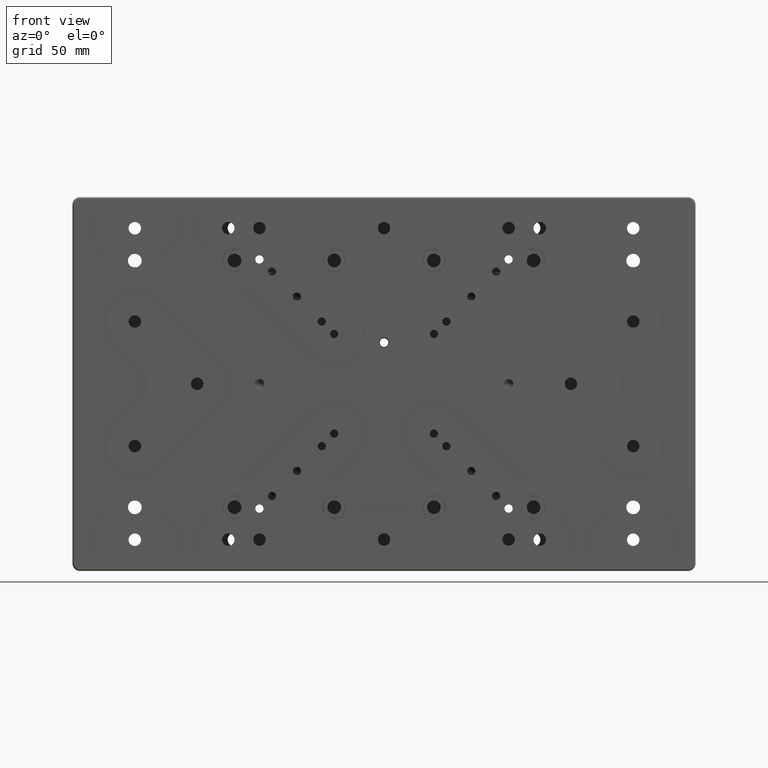
[diagram: clean part render]
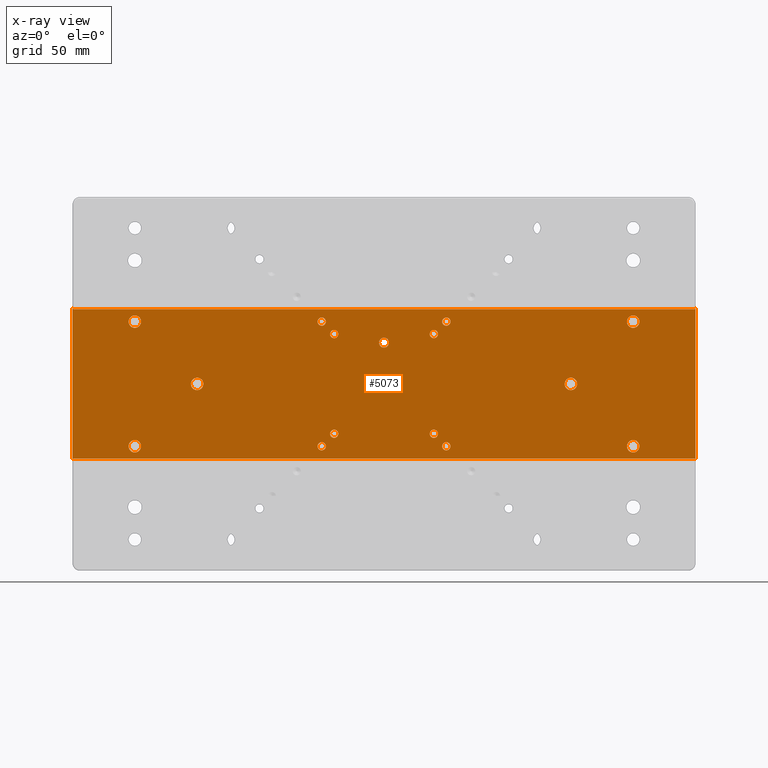
[diagram: x-ray — body ghosted, one internal face saturated and labeled with its STEP entity id]
A machine part, front view, then the same camera in x-ray: the body is ghosted and one INTERNAL B-rep face — a face not visible from any outside direction — is saturated and labeled: STEP entity #5073.
In plain terms, the highlighted planar face has unit normal (0, 1, 0).
Its self-contained STEP definition (entity closure, byte-faithful):
#112 = DIRECTION ( 'NONE',  ( 0.000000000000000000, 0.000000000000000000, -1.000000000000000000 ) ) ;
#429 = FACE_BOUND ( 'NONE', #14260, .T. ) ;
#709 = AXIS2_PLACEMENT_3D ( 'NONE', #4245, #17811, #9771 ) ;
#718 = AXIS2_PLACEMENT_3D ( 'NONE', #21863, #32783, #26878 ) ;
#791 = DIRECTION ( 'NONE',  ( 0.000000000000000000, 1.000000000000000000, 0.000000000000000000 ) ) ;
#1041 = ORIENTED_EDGE ( 'NONE', *, *, #14059, .T. ) ;
#1356 = DIRECTION ( 'NONE',  ( 0.000000000000000000, -1.000000000000000000, 0.000000000000000000 ) ) ;
#1706 = DIRECTION ( 'NONE',  ( 0.000000000000000000, 0.000000000000000000, -1.000000000000000000 ) ) ;
#1832 = AXIS2_PLACEMENT_3D ( 'NONE', #5634, #791, #27599 ) ;
#1864 = AXIS2_PLACEMENT_3D ( 'NONE', #17171, #22869, #28596 ) ;
#1955 = DIRECTION ( 'NONE',  ( 0.000000000000000000, -1.000000000000000000, 0.000000000000000000 ) ) ;
#2048 = LINE ( 'NONE', #10611, #18118 ) ;
#2122 = ORIENTED_EDGE ( 'NONE', *, *, #34911, .T. ) ;
#2218 = CARTESIAN_POINT ( 'NONE',  ( -125.0000000000000000, -11.50000000000000000, -30.00000000000000000 ) ) ;
#2238 = CARTESIAN_POINT ( 'NONE',  ( 20.00000000000000000, -11.50000000000000000, 18.35000000000000142 ) ) ;
#2378 = DIRECTION ( 'NONE',  ( 0.000000000000000000, 0.000000000000000000, 1.000000000000000000 ) ) ;
#2637 = VERTEX_POINT ( 'NONE', #10846 ) ;
#2903 = CARTESIAN_POINT ( 'NONE',  ( -100.0000000000000000, -11.50000000000000000, -25.00000000000000000 ) ) ;
#2917 = VERTEX_POINT ( 'NONE', #34887 ) ;
#2954 = FACE_BOUND ( 'NONE', #11788, .T. ) ;
#2965 = EDGE_CURVE ( 'NONE', #20138, #20135, #11542, .T. ) ;
#2980 = AXIS2_PLACEMENT_3D ( 'NONE', #6792, #14826, #17681 ) ;
#3302 = DIRECTION ( 'NONE',  ( 0.000000000000000000, -1.000000000000000000, 0.000000000000000000 ) ) ;
#3305 = FACE_BOUND ( 'NONE', #4184, .T. ) ;
#3406 = LINE ( 'NONE', #14830, #15453 ) ;
#3430 = DIRECTION ( 'NONE',  ( 0.000000000000000000, 0.000000000000000000, -1.000000000000000000 ) ) ;
#3443 = DIRECTION ( 'NONE',  ( 0.000000000000000000, 0.000000000000000000, -1.000000000000000000 ) ) ;
#3761 = EDGE_CURVE ( 'NONE', #29924, #29924, #17421, .T. ) ;
#3762 = DIRECTION ( 'NONE',  ( -1.000000000000000000, -0.000000000000000000, 0.000000000000000000 ) ) ;
#3803 = EDGE_LOOP ( 'NONE', ( #17511 ) ) ;
#3952 = VECTOR ( 'NONE', #18466, 1000.000000000000000 ) ;
#4038 = CARTESIAN_POINT ( 'NONE',  ( 20.00000000000000000, -11.50000000000000000, 20.00000000000000000 ) ) ;
#4184 = EDGE_LOOP ( 'NONE', ( #21442 ) ) ;
#4190 = DIRECTION ( 'NONE',  ( 0.000000000000000000, 0.000000000000000000, 1.000000000000000000 ) ) ;
#4245 = CARTESIAN_POINT ( 'NONE',  ( -25.00000000000000000, -11.50000000000000000, 25.00000000000000000 ) ) ;
#4422 = VERTEX_POINT ( 'NONE', #26237 ) ;
#4569 = CARTESIAN_POINT ( 'NONE',  ( -124.5000000000000000, -11.49999999999999822, -30.00000000000000000 ) ) ;
#5073 = ADVANCED_FACE ( 'NONE', ( #19721, #429, #22042, #16706, #19188, #16879, #2954, #9015, #6345, #30459, #5995, #27762, #8840, #3305, #14204, #33312 ), #5814, .T. ) ;
#5466 = ORIENTED_EDGE ( 'NONE', *, *, #10738, .T. ) ;
#5498 = CARTESIAN_POINT ( 'NONE',  ( -25.00000000000000000, -11.50000000000000000, -26.64999999999999858 ) ) ;
#5634 = CARTESIAN_POINT ( 'NONE',  ( -125.0000000000000000, -11.50000000000000000, -30.00000000000000000 ) ) ;
#5814 = PLANE ( 'NONE',  #1832 ) ;
#5995 = FACE_BOUND ( 'NONE', #14699, .T. ) ;
#6239 = CIRCLE ( 'NONE', #25066, 0.5000000000000004441 ) ;
#6345 = FACE_BOUND ( 'NONE', #34415, .T. ) ;
#6374 = DIRECTION ( 'NONE',  ( 0.000000000000000000, 0.000000000000000000, -1.000000000000000000 ) ) ;
#6610 = EDGE_CURVE ( 'NONE', #11334, #11334, #8382, .T. ) ;
#6636 = AXIS2_PLACEMENT_3D ( 'NONE', #17189, #14515, #22890 ) ;
#6792 = CARTESIAN_POINT ( 'NONE',  ( 20.00000000000000000, -11.50000000000000000, -20.00000000000000000 ) ) ;
#6872 = EDGE_LOOP ( 'NONE', ( #22364 ) ) ;
#7364 = EDGE_CURVE ( 'NONE', #8665, #8665, #10433, .T. ) ;
#7590 = LINE ( 'NONE', #2218, #3952 ) ;
#8382 = CIRCLE ( 'NONE', #21550, 2.499999999999998668 ) ;
#8447 = EDGE_CURVE ( 'NONE', #20138, #4422, #25088, .T. ) ;
#8477 = AXIS2_PLACEMENT_3D ( 'NONE', #13823, #29709, #2378 ) ;
#8504 = AXIS2_PLACEMENT_3D ( 'NONE', #2903, #19138, #10578 ) ;
#8665 = VERTEX_POINT ( 'NONE', #19544 ) ;
#8840 = FACE_BOUND ( 'NONE', #33074, .T. ) ;
#9015 = FACE_BOUND ( 'NONE', #34554, .T. ) ;
#9200 = EDGE_CURVE ( 'NONE', #31810, #31810, #14907, .T. ) ;
#9718 = DIRECTION ( 'NONE',  ( 0.000000000000000000, 1.000000000000000000, 0.000000000000000000 ) ) ;
#9771 = DIRECTION ( 'NONE',  ( 0.000000000000000000, 0.000000000000000000, -1.000000000000000000 ) ) ;
#10251 = DIRECTION ( 'NONE',  ( 0.000000000000000000, 0.000000000000000000, -1.000000000000000000 ) ) ;
#10433 = CIRCLE ( 'NONE', #718, 2.500000000000000000 ) ;
#10578 = DIRECTION ( 'NONE',  ( 0.000000000000000000, 0.000000000000000000, -1.000000000000000000 ) ) ;
#10611 = CARTESIAN_POINT ( 'NONE',  ( 125.0000000000000000, -11.50000000000000000, -30.00000000000000000 ) ) ;
#10626 = CARTESIAN_POINT ( 'NONE',  ( 124.5000000000000000, -11.50000000000000178, -30.00000000000000000 ) ) ;
#10738 = EDGE_CURVE ( 'NONE', #29838, #29838, #34379, .T. ) ;
#10837 = DIRECTION ( 'NONE',  ( -0.000000000000000000, 1.000000000000000000, -0.000000000000000000 ) ) ;
#10846 = CARTESIAN_POINT ( 'NONE',  ( 0.000000000000000000, -11.50000000000000000, 18.57000000000000384 ) ) ;
#10851 = ORIENTED_EDGE ( 'NONE', *, *, #2965, .T. ) ;
#10890 = CARTESIAN_POINT ( 'NONE',  ( -124.5000000000000000, -11.50000000000000355, 30.50000000000000000 ) ) ;
#11127 = CARTESIAN_POINT ( 'NONE',  ( -124.5000000000000000, -11.50000000000000178, 30.00000000000000000 ) ) ;
#11334 = VERTEX_POINT ( 'NONE', #14024 ) ;
#11395 = EDGE_CURVE ( 'NONE', #18301, #21525, #18473, .T. ) ;
#11396 = ORIENTED_EDGE ( 'NONE', *, *, #29597, .T. ) ;
#11542 = LINE ( 'NONE', #19391, #27712 ) ;
#11611 = EDGE_CURVE ( 'NONE', #16264, #16264, #28746, .T. ) ;
#11788 = EDGE_LOOP ( 'NONE', ( #22293 ) ) ;
#12697 = ORIENTED_EDGE ( 'NONE', *, *, #8447, .F. ) ;
#13224 = CARTESIAN_POINT ( 'NONE',  ( -20.00000000000000000, -11.50000000000000000, 18.35000000000000142 ) ) ;
#13335 = AXIS2_PLACEMENT_3D ( 'NONE', #20277, #17436, #6374 ) ;
#13406 = CARTESIAN_POINT ( 'NONE',  ( -75.00000000000000000, -11.50000000000000000, -2.500000000000000000 ) ) ;
#13716 = CARTESIAN_POINT ( 'NONE',  ( -100.0000000000000000, -11.50000000000000000, -27.50000000000000000 ) ) ;
#13783 = ORIENTED_EDGE ( 'NONE', *, *, #18979, .T. ) ;
#13823 = CARTESIAN_POINT ( 'NONE',  ( 0.000000000000000000, -11.50000000000000000, 16.57000000000000028 ) ) ;
#13859 = CARTESIAN_POINT ( 'NONE',  ( -100.0000000000000000, -11.50000000000000000, 25.00000000000000000 ) ) ;
#13916 = ORIENTED_EDGE ( 'NONE', *, *, #11395, .F. ) ;
#14024 = CARTESIAN_POINT ( 'NONE',  ( 100.0000000000000000, -11.50000000000000000, -27.50000000000000000 ) ) ;
#14059 = EDGE_CURVE ( 'NONE', #33926, #33926, #34349, .T. ) ;
#14161 = CARTESIAN_POINT ( 'NONE',  ( -25.00000000000000000, -11.50000000000000000, -25.00000000000000000 ) ) ;
#14204 = FACE_BOUND ( 'NONE', #3803, .T. ) ;
#14260 = EDGE_LOOP ( 'NONE', ( #5466 ) ) ;
#14290 = VERTEX_POINT ( 'NONE', #15004 ) ;
#14403 = EDGE_CURVE ( 'NONE', #14290, #14290, #19546, .T. ) ;
#14515 = DIRECTION ( 'NONE',  ( 0.000000000000000000, 1.000000000000000000, 0.000000000000000000 ) ) ;
#14699 = EDGE_LOOP ( 'NONE', ( #2122 ) ) ;
#14790 = ORIENTED_EDGE ( 'NONE', *, *, #6610, .T. ) ;
#14826 = DIRECTION ( 'NONE',  ( 0.000000000000000000, -1.000000000000000000, 0.000000000000000000 ) ) ;
#14830 = CARTESIAN_POINT ( 'NONE',  ( -125.0000000000000000, -11.50000000000000000, -30.00000000000000000 ) ) ;
#14907 = CIRCLE ( 'NONE', #32569, 1.649999999999998579 ) ;
#15004 = CARTESIAN_POINT ( 'NONE',  ( -25.00000000000000000, -11.50000000000000000, 23.35000000000000142 ) ) ;
#15453 = VECTOR ( 'NONE', #3762, 1000.000000000000000 ) ;
#15787 = CARTESIAN_POINT ( 'NONE',  ( 100.0000000000000000, -11.50000000000000000, -25.00000000000000000 ) ) ;
#16264 = VERTEX_POINT ( 'NONE', #16439 ) ;
#16349 = VERTEX_POINT ( 'NONE', #32428 ) ;
#16387 = ORIENTED_EDGE ( 'NONE', *, *, #7364, .T. ) ;
#16435 = DIRECTION ( 'NONE',  ( -0.000000000000000000, 1.000000000000000000, -0.000000000000000000 ) ) ;
#16439 = CARTESIAN_POINT ( 'NONE',  ( 25.00000000000000000, -11.50000000000000000, 23.35000000000000142 ) ) ;
#16482 = DIRECTION ( 'NONE',  ( 0.000000000000000000, 0.000000000000000000, -1.000000000000000000 ) ) ;
#16662 = DIRECTION ( 'NONE',  ( 0.000000000000000000, -1.000000000000000000, 0.000000000000000000 ) ) ;
#16706 = FACE_BOUND ( 'NONE', #30639, .T. ) ;
#16779 = AXIS2_PLACEMENT_3D ( 'NONE', #22076, #10837, #112 ) ;
#16879 = FACE_BOUND ( 'NONE', #24956, .T. ) ;
#17171 = CARTESIAN_POINT ( 'NONE',  ( -75.00000000000000000, -11.50000000000000000, 0.000000000000000000 ) ) ;
#17189 = CARTESIAN_POINT ( 'NONE',  ( -124.5000000000000000, -11.49999999999999645, -30.50000000000000000 ) ) ;
#17206 = EDGE_CURVE ( 'NONE', #28914, #28914, #31801, .T. ) ;
#17216 = VERTEX_POINT ( 'NONE', #32958 ) ;
#17421 = CIRCLE ( 'NONE', #20832, 1.649999999999998579 ) ;
#17436 = DIRECTION ( 'NONE',  ( 0.000000000000000000, -1.000000000000000000, 0.000000000000000000 ) ) ;
#17511 = ORIENTED_EDGE ( 'NONE', *, *, #20355, .T. ) ;
#17662 = DIRECTION ( 'NONE',  ( 0.000000000000000000, 0.000000000000000000, -1.000000000000000000 ) ) ;
#17681 = DIRECTION ( 'NONE',  ( 0.000000000000000000, 0.000000000000000000, -1.000000000000000000 ) ) ;
#17811 = DIRECTION ( 'NONE',  ( 0.000000000000000000, -1.000000000000000000, 0.000000000000000000 ) ) ;
#18118 = VECTOR ( 'NONE', #32234, 1000.000000000000000 ) ;
#18301 = VERTEX_POINT ( 'NONE', #10626 ) ;
#18322 = CARTESIAN_POINT ( 'NONE',  ( 25.00000000000000000, -11.50000000000000000, -26.64999999999999858 ) ) ;
#18466 = DIRECTION ( 'NONE',  ( 0.000000000000000000, -0.000000000000000000, 1.000000000000000000 ) ) ;
#18473 = CIRCLE ( 'NONE', #16779, 0.5000000000000004441 ) ;
#18979 = EDGE_CURVE ( 'NONE', #19407, #19407, #29581, .T. ) ;
#19138 = DIRECTION ( 'NONE',  ( 0.000000000000000000, -1.000000000000000000, 0.000000000000000000 ) ) ;
#19188 = FACE_BOUND ( 'NONE', #6872, .T. ) ;
#19391 = CARTESIAN_POINT ( 'NONE',  ( -125.0000000000000000, -11.50000000000000000, 30.00000000000000000 ) ) ;
#19406 = ORIENTED_EDGE ( 'NONE', *, *, #32763, .F. ) ;
#19407 = VERTEX_POINT ( 'NONE', #13716 ) ;
#19544 = CARTESIAN_POINT ( 'NONE',  ( 75.00000000000000000, -11.50000000000000000, -2.500000000000000000 ) ) ;
#19546 = CIRCLE ( 'NONE', #709, 1.649999999999998579 ) ;
#19721 = FACE_BOUND ( 'NONE', #25231, .T. ) ;
#19785 = ORIENTED_EDGE ( 'NONE', *, *, #24909, .F. ) ;
#19973 = CARTESIAN_POINT ( 'NONE',  ( -20.00000000000000000, -11.50000000000000000, -20.00000000000000000 ) ) ;
#20135 = VERTEX_POINT ( 'NONE', #22182 ) ;
#20138 = VERTEX_POINT ( 'NONE', #11127 ) ;
#20222 = EDGE_CURVE ( 'NONE', #2637, #2637, #27868, .T. ) ;
#20277 = CARTESIAN_POINT ( 'NONE',  ( 25.00000000000000000, -11.50000000000000000, 25.00000000000000000 ) ) ;
#20355 = EDGE_CURVE ( 'NONE', #29969, #29969, #21589, .T. ) ;
#20406 = EDGE_LOOP ( 'NONE', ( #22051 ) ) ;
#20832 = AXIS2_PLACEMENT_3D ( 'NONE', #4038, #1356, #1706 ) ;
#21004 = CIRCLE ( 'NONE', #30695, 2.499999999999998668 ) ;
#21442 = ORIENTED_EDGE ( 'NONE', *, *, #11611, .T. ) ;
#21510 = AXIS2_PLACEMENT_3D ( 'NONE', #13859, #3302, #24730 ) ;
#21525 = VERTEX_POINT ( 'NONE', #27383 ) ;
#21550 = AXIS2_PLACEMENT_3D ( 'NONE', #15787, #21662, #10251 ) ;
#21575 = DIRECTION ( 'NONE',  ( 0.000000000000000000, 0.000000000000000000, -1.000000000000000000 ) ) ;
#21589 = CIRCLE ( 'NONE', #34709, 1.649999999999998579 ) ;
#21645 = CARTESIAN_POINT ( 'NONE',  ( 25.00000000000000000, -11.50000000000000000, -25.00000000000000000 ) ) ;
#21662 = DIRECTION ( 'NONE',  ( 0.000000000000000000, -1.000000000000000000, 0.000000000000000000 ) ) ;
#21863 = CARTESIAN_POINT ( 'NONE',  ( 75.00000000000000000, -11.50000000000000000, 0.000000000000000000 ) ) ;
#21945 = EDGE_CURVE ( 'NONE', #18301, #28434, #3406, .T. ) ;
#22042 = FACE_BOUND ( 'NONE', #20406, .T. ) ;
#22051 = ORIENTED_EDGE ( 'NONE', *, *, #26415, .T. ) ;
#22076 = CARTESIAN_POINT ( 'NONE',  ( 124.5000000000000000, -11.50000000000000355, -30.50000000000000000 ) ) ;
#22182 = CARTESIAN_POINT ( 'NONE',  ( 124.5000000000000000, -11.49999999999999822, 30.00000000000000000 ) ) ;
#22249 = CARTESIAN_POINT ( 'NONE',  ( -125.0000000000000000, -11.49999999999999822, -30.50000000000000000 ) ) ;
#22293 = ORIENTED_EDGE ( 'NONE', *, *, #23588, .T. ) ;
#22348 = CIRCLE ( 'NONE', #26838, 1.649999999999998579 ) ;
#22364 = ORIENTED_EDGE ( 'NONE', *, *, #17206, .T. ) ;
#22385 = CIRCLE ( 'NONE', #29235, 1.649999999999998579 ) ;
#22869 = DIRECTION ( 'NONE',  ( 0.000000000000000000, -1.000000000000000000, 0.000000000000000000 ) ) ;
#22890 = DIRECTION ( 'NONE',  ( 0.000000000000000000, 0.000000000000000000, 1.000000000000000000 ) ) ;
#22894 = DIRECTION ( 'NONE',  ( 0.000000000000000000, -1.000000000000000000, 0.000000000000000000 ) ) ;
#23081 = EDGE_LOOP ( 'NONE', ( #19785, #25936, #12697, #10851, #19406, #11396, #13916, #31446 ) ) ;
#23588 = EDGE_CURVE ( 'NONE', #29394, #29394, #22385, .T. ) ;
#24599 = EDGE_LOOP ( 'NONE', ( #24792 ) ) ;
#24730 = DIRECTION ( 'NONE',  ( 0.000000000000000000, 0.000000000000000000, -1.000000000000000000 ) ) ;
#24792 = ORIENTED_EDGE ( 'NONE', *, *, #3761, .T. ) ;
#24909 = EDGE_CURVE ( 'NONE', #31002, #28434, #34587, .T. ) ;
#24956 = EDGE_LOOP ( 'NONE', ( #13783 ) ) ;
#25066 = AXIS2_PLACEMENT_3D ( 'NONE', #31687, #9718, #4190 ) ;
#25088 = CIRCLE ( 'NONE', #34216, 0.5000000000000004441 ) ;
#25231 = EDGE_LOOP ( 'NONE', ( #16387 ) ) ;
#25936 = ORIENTED_EDGE ( 'NONE', *, *, #27310, .T. ) ;
#26237 = CARTESIAN_POINT ( 'NONE',  ( -125.0000000000000000, -11.50000000000000178, 30.50000000000000000 ) ) ;
#26415 = EDGE_CURVE ( 'NONE', #16349, #16349, #21004, .T. ) ;
#26816 = EDGE_LOOP ( 'NONE', ( #1041 ) ) ;
#26838 = AXIS2_PLACEMENT_3D ( 'NONE', #19973, #33917, #17662 ) ;
#26878 = DIRECTION ( 'NONE',  ( 0.000000000000000000, 0.000000000000000000, -1.000000000000000000 ) ) ;
#26899 = ORIENTED_EDGE ( 'NONE', *, *, #20222, .T. ) ;
#27310 = EDGE_CURVE ( 'NONE', #31002, #4422, #7590, .T. ) ;
#27383 = CARTESIAN_POINT ( 'NONE',  ( 125.0000000000000000, -11.50000000000000178, -30.50000000000000000 ) ) ;
#27599 = DIRECTION ( 'NONE',  ( 0.000000000000000000, -0.000000000000000000, 1.000000000000000000 ) ) ;
#27618 = DIRECTION ( 'NONE',  ( 1.000000000000000000, 0.000000000000000000, -0.000000000000000000 ) ) ;
#27701 = ORIENTED_EDGE ( 'NONE', *, *, #14403, .T. ) ;
#27712 = VECTOR ( 'NONE', #27618, 1000.000000000000000 ) ;
#27762 = FACE_BOUND ( 'NONE', #26816, .T. ) ;
#27844 = DIRECTION ( 'NONE',  ( 0.000000000000000000, 0.000000000000000000, -1.000000000000000000 ) ) ;
#27868 = CIRCLE ( 'NONE', #8477, 2.000000000000001776 ) ;
#27888 = DIRECTION ( 'NONE',  ( 0.000000000000000000, -1.000000000000000000, 0.000000000000000000 ) ) ;
#28434 = VERTEX_POINT ( 'NONE', #4569 ) ;
#28596 = DIRECTION ( 'NONE',  ( 0.000000000000000000, 0.000000000000000000, -1.000000000000000000 ) ) ;
#28746 = CIRCLE ( 'NONE', #13335, 1.649999999999998579 ) ;
#28914 = VERTEX_POINT ( 'NONE', #29266 ) ;
#29235 = AXIS2_PLACEMENT_3D ( 'NONE', #21645, #27888, #3430 ) ;
#29266 = CARTESIAN_POINT ( 'NONE',  ( -100.0000000000000000, -11.50000000000000000, 22.50000000000000355 ) ) ;
#29394 = VERTEX_POINT ( 'NONE', #18322 ) ;
#29581 = CIRCLE ( 'NONE', #8504, 2.499999999999998668 ) ;
#29597 = EDGE_CURVE ( 'NONE', #17216, #21525, #2048, .T. ) ;
#29709 = DIRECTION ( 'NONE',  ( -0.000000000000000000, -1.000000000000000000, -0.000000000000000000 ) ) ;
#29838 = VERTEX_POINT ( 'NONE', #13406 ) ;
#29924 = VERTEX_POINT ( 'NONE', #2238 ) ;
#29969 = VERTEX_POINT ( 'NONE', #5498 ) ;
#30459 = FACE_BOUND ( 'NONE', #24599, .T. ) ;
#30639 = EDGE_LOOP ( 'NONE', ( #14790 ) ) ;
#30695 = AXIS2_PLACEMENT_3D ( 'NONE', #34629, #1955, #21575 ) ;
#31002 = VERTEX_POINT ( 'NONE', #22249 ) ;
#31071 = CARTESIAN_POINT ( 'NONE',  ( 20.00000000000000000, -11.50000000000000000, -21.64999999999999858 ) ) ;
#31446 = ORIENTED_EDGE ( 'NONE', *, *, #21945, .T. ) ;
#31687 = CARTESIAN_POINT ( 'NONE',  ( 124.5000000000000000, -11.49999999999999645, 30.50000000000000000 ) ) ;
#31801 = CIRCLE ( 'NONE', #21510, 2.499999999999998668 ) ;
#31810 = VERTEX_POINT ( 'NONE', #13224 ) ;
#32234 = DIRECTION ( 'NONE',  ( -0.000000000000000000, 0.000000000000000000, -1.000000000000000000 ) ) ;
#32428 = CARTESIAN_POINT ( 'NONE',  ( 100.0000000000000000, -11.50000000000000000, 22.50000000000000355 ) ) ;
#32498 = ORIENTED_EDGE ( 'NONE', *, *, #9200, .T. ) ;
#32569 = AXIS2_PLACEMENT_3D ( 'NONE', #32913, #16662, #16482 ) ;
#32763 = EDGE_CURVE ( 'NONE', #17216, #20135, #6239, .T. ) ;
#32783 = DIRECTION ( 'NONE',  ( 0.000000000000000000, -1.000000000000000000, 0.000000000000000000 ) ) ;
#32913 = CARTESIAN_POINT ( 'NONE',  ( -20.00000000000000000, -11.50000000000000000, 20.00000000000000000 ) ) ;
#32958 = CARTESIAN_POINT ( 'NONE',  ( 125.0000000000000000, -11.49999999999999822, 30.50000000000000000 ) ) ;
#33074 = EDGE_LOOP ( 'NONE', ( #27701 ) ) ;
#33312 = FACE_OUTER_BOUND ( 'NONE', #23081, .T. ) ;
#33917 = DIRECTION ( 'NONE',  ( 0.000000000000000000, -1.000000000000000000, 0.000000000000000000 ) ) ;
#33926 = VERTEX_POINT ( 'NONE', #31071 ) ;
#34216 = AXIS2_PLACEMENT_3D ( 'NONE', #10890, #16435, #27844 ) ;
#34349 = CIRCLE ( 'NONE', #2980, 1.649999999999998579 ) ;
#34379 = CIRCLE ( 'NONE', #1864, 2.500000000000000000 ) ;
#34415 = EDGE_LOOP ( 'NONE', ( #32498 ) ) ;
#34554 = EDGE_LOOP ( 'NONE', ( #26899 ) ) ;
#34587 = CIRCLE ( 'NONE', #6636, 0.5000000000000004441 ) ;
#34629 = CARTESIAN_POINT ( 'NONE',  ( 100.0000000000000000, -11.50000000000000000, 25.00000000000000000 ) ) ;
#34709 = AXIS2_PLACEMENT_3D ( 'NONE', #14161, #22894, #3443 ) ;
#34887 = CARTESIAN_POINT ( 'NONE',  ( -20.00000000000000000, -11.50000000000000000, -21.64999999999999858 ) ) ;
#34911 = EDGE_CURVE ( 'NONE', #2917, #2917, #22348, .T. ) ;